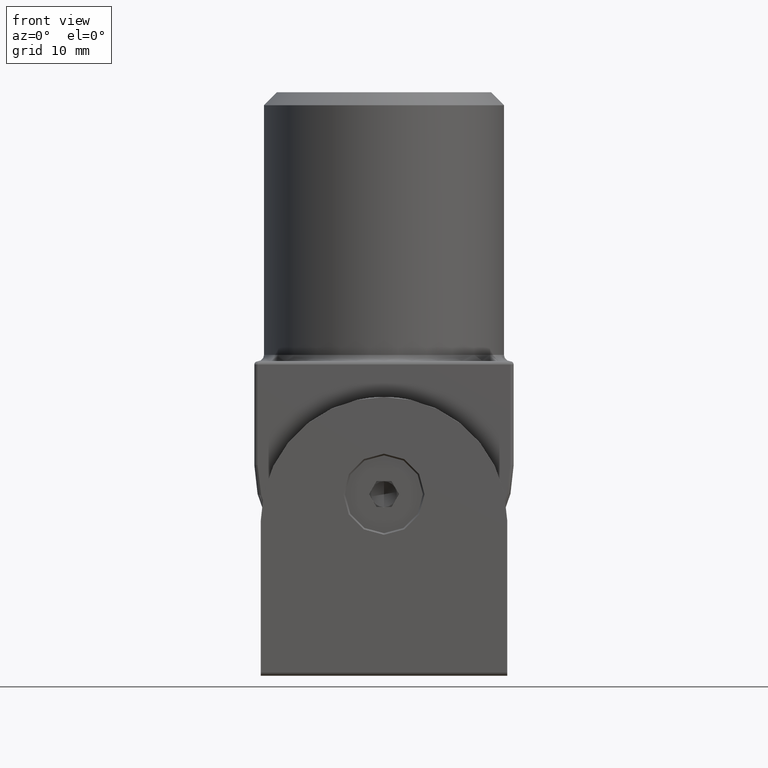
[diagram: clean part render]
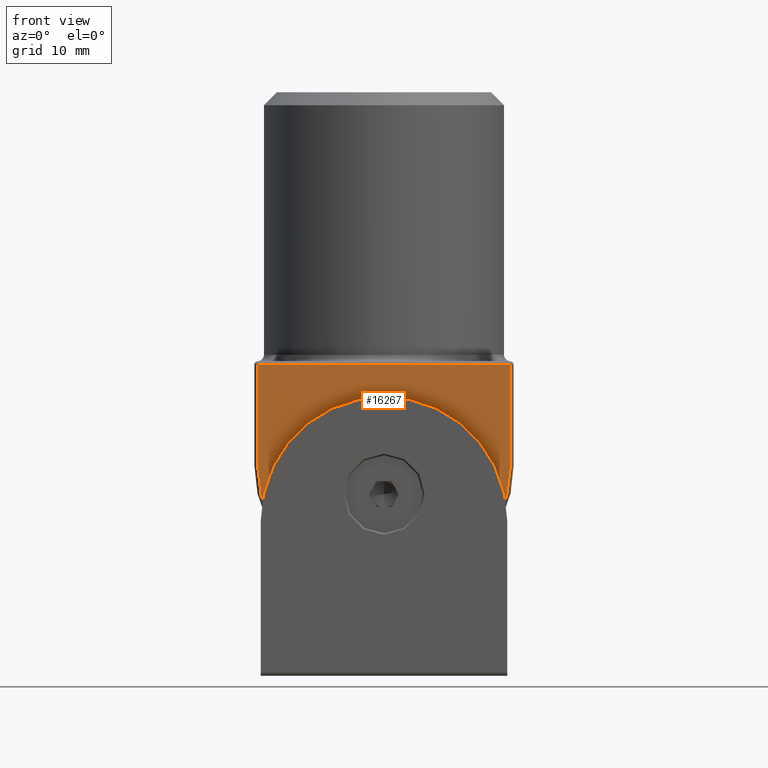
[diagram: same view with one face highlighted and labeled with its STEP entity id]
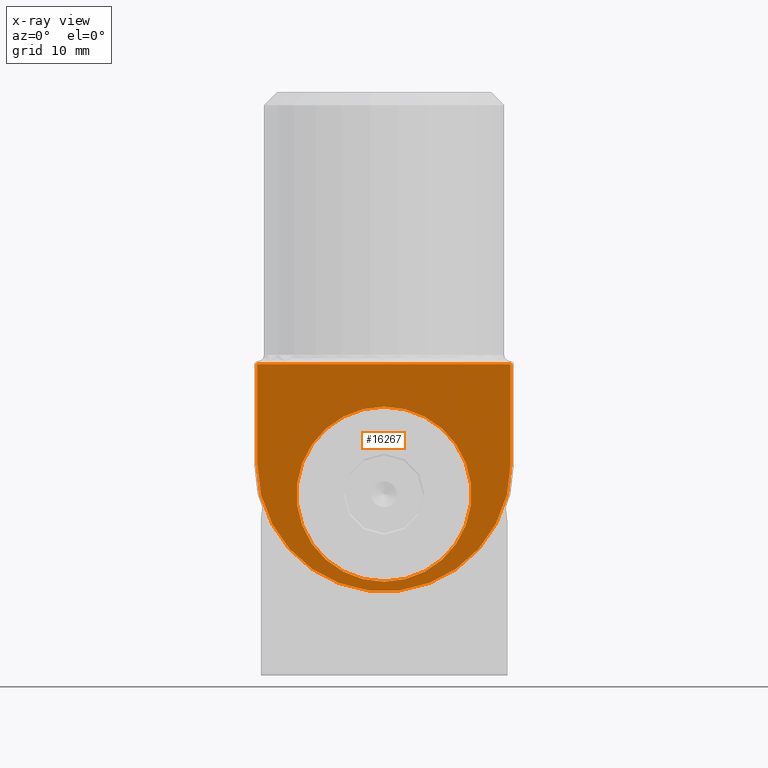
[diagram: x-ray of the same camera — body ghosted, the highlighted face saturated]
A machine part, front view. The second image highlights one B-rep face of the part: STEP entity #16267.
The next image is the same camera in x-ray: the body ghosted, the highlighted face saturated — about 0% of this face is hidden behind the body in this view.
In plain terms, the highlighted planar face has unit normal (0, 1, 0).
Its self-contained STEP definition (entity closure, byte-faithful):
#636 = DIRECTION ( 'NONE',  ( 0.000000000000000000, 0.000000000000000000, 1.000000000000000000 ) ) ;
#743 = CARTESIAN_POINT ( 'NONE',  ( -19.50000000000000355, -20.00000000000000000, -15.99999999999998579 ) ) ;
#900 = AXIS2_PLACEMENT_3D ( 'NONE', #16723, #10628, #2503 ) ;
#1292 = CARTESIAN_POINT ( 'NONE',  ( 0.000000000000000000, -20.00000000000000000, -0.5000000000000004441 ) ) ;
#1824 = PLANE ( 'NONE',  #19680 ) ;
#2000 = CARTESIAN_POINT ( 'NONE',  ( 19.50000000000000355, -20.00000000000000000, -15.99999999999998579 ) ) ;
#2047 = VERTEX_POINT ( 'NONE', #19101 ) ;
#2285 = CARTESIAN_POINT ( 'NONE',  ( 0.000000000000000000, -20.00000000000000000, -20.50000000000000355 ) ) ;
#2503 = DIRECTION ( 'NONE',  ( 0.000000000000000000, 0.000000000000000000, 1.000000000000000000 ) ) ;
#2555 = EDGE_LOOP ( 'NONE', ( #6221, #17873 ) ) ;
#2694 = CARTESIAN_POINT ( 'NONE',  ( 1.653273178848924895E-15, -20.00000000000000000, -7.000000000000020428 ) ) ;
#3339 = DIRECTION ( 'NONE',  ( 0.000000000000000000, 1.000000000000000000, 0.000000000000000000 ) ) ;
#3400 = CIRCLE ( 'NONE', #14529, 19.50000000000000355 ) ;
#3686 = VERTEX_POINT ( 'NONE', #6321 ) ;
#3706 = ORIENTED_EDGE ( 'NONE', *, *, #18398, .T. ) ;
#3974 = ORIENTED_EDGE ( 'NONE', *, *, #10683, .T. ) ;
#4549 = CIRCLE ( 'NONE', #900, 13.49999999999998401 ) ;
#5595 = DIRECTION ( 'NONE',  ( -0.000000000000000000, -1.000000000000000000, -0.000000000000000000 ) ) ;
#6221 = ORIENTED_EDGE ( 'NONE', *, *, #9031, .T. ) ;
#6321 = CARTESIAN_POINT ( 'NONE',  ( -19.50000000000000355, -20.00000000000000000, -16.00000000000000000 ) ) ;
#7043 = DIRECTION ( 'NONE',  ( 0.000000000000000000, 0.000000000000000000, 1.000000000000000000 ) ) ;
#7826 = DIRECTION ( 'NONE',  ( -2.168404344971010347E-16, -0.000000000000000000, 1.000000000000000000 ) ) ;
#7992 = VERTEX_POINT ( 'NONE', #8239 ) ;
#8239 = CARTESIAN_POINT ( 'NONE',  ( 0.000000000000000000, -20.00000000000000000, -33.99999999999998579 ) ) ;
#8660 = LINE ( 'NONE', #14020, #12584 ) ;
#9031 = EDGE_CURVE ( 'NONE', #7992, #10353, #17284, .T. ) ;
#10073 = DIRECTION ( 'NONE',  ( 0.000000000000000000, 1.000000000000000000, 0.000000000000000000 ) ) ;
#10229 = CARTESIAN_POINT ( 'NONE',  ( 0.000000000000000000, -20.00000000000000000, -15.99999999999998579 ) ) ;
#10353 = VERTEX_POINT ( 'NONE', #2694 ) ;
#10628 = DIRECTION ( 'NONE',  ( 0.000000000000000000, 1.000000000000000000, 0.000000000000000000 ) ) ;
#10683 = EDGE_CURVE ( 'NONE', #18427, #3686, #11547, .T. ) ;
#11046 = AXIS2_PLACEMENT_3D ( 'NONE', #2285, #10073, #636 ) ;
#11053 = EDGE_CURVE ( 'NONE', #3686, #13890, #3400, .T. ) ;
#11547 = LINE ( 'NONE', #743, #13270 ) ;
#12320 = ORIENTED_EDGE ( 'NONE', *, *, #19733, .T. ) ;
#12584 = VECTOR ( 'NONE', #7826, 1000.000000000000000 ) ;
#13270 = VECTOR ( 'NONE', #14886, 1000.000000000000000 ) ;
#13394 = VECTOR ( 'NONE', #18558, 1000.000000000000000 ) ;
#13890 = VERTEX_POINT ( 'NONE', #2000 ) ;
#14020 = CARTESIAN_POINT ( 'NONE',  ( 19.50000000000000355, -20.00000000000000000, -15.99999999999998579 ) ) ;
#14529 = AXIS2_PLACEMENT_3D ( 'NONE', #10229, #5595, #7043 ) ;
#14886 = DIRECTION ( 'NONE',  ( -2.168404344971010347E-16, 0.000000000000000000, -1.000000000000000000 ) ) ;
#14888 = LINE ( 'NONE', #1292, #13394 ) ;
#15304 = CARTESIAN_POINT ( 'NONE',  ( -19.50000000000000000, -20.00000000000000000, -0.5000000000000004441 ) ) ;
#16105 = DIRECTION ( 'NONE',  ( 0.000000000000000000, -0.000000000000000000, 1.000000000000000000 ) ) ;
#16267 = ADVANCED_FACE ( 'NONE', ( #19889, #17681 ), #1824, .F. ) ;
#16620 = EDGE_CURVE ( 'NONE', #10353, #7992, #4549, .T. ) ;
#16723 = CARTESIAN_POINT ( 'NONE',  ( 0.000000000000000000, -20.00000000000000000, -20.50000000000000355 ) ) ;
#17284 = CIRCLE ( 'NONE', #11046, 13.49999999999998401 ) ;
#17681 = FACE_OUTER_BOUND ( 'NONE', #19291, .T. ) ;
#17873 = ORIENTED_EDGE ( 'NONE', *, *, #16620, .T. ) ;
#17882 = ORIENTED_EDGE ( 'NONE', *, *, #11053, .T. ) ;
#18398 = EDGE_CURVE ( 'NONE', #2047, #18427, #14888, .T. ) ;
#18427 = VERTEX_POINT ( 'NONE', #15304 ) ;
#18558 = DIRECTION ( 'NONE',  ( -1.000000000000000000, 0.000000000000000000, -0.000000000000000000 ) ) ;
#19101 = CARTESIAN_POINT ( 'NONE',  ( 19.50000000000000000, -20.00000000000000000, -0.5000000000000004441 ) ) ;
#19139 = CARTESIAN_POINT ( 'NONE',  ( 0.000000000000000000, -20.00000000000000000, -15.99999999999998579 ) ) ;
#19291 = EDGE_LOOP ( 'NONE', ( #3706, #3974, #17882, #12320 ) ) ;
#19680 = AXIS2_PLACEMENT_3D ( 'NONE', #19139, #3339, #16105 ) ;
#19733 = EDGE_CURVE ( 'NONE', #13890, #2047, #8660, .T. ) ;
#19889 = FACE_BOUND ( 'NONE', #2555, .T. ) ;